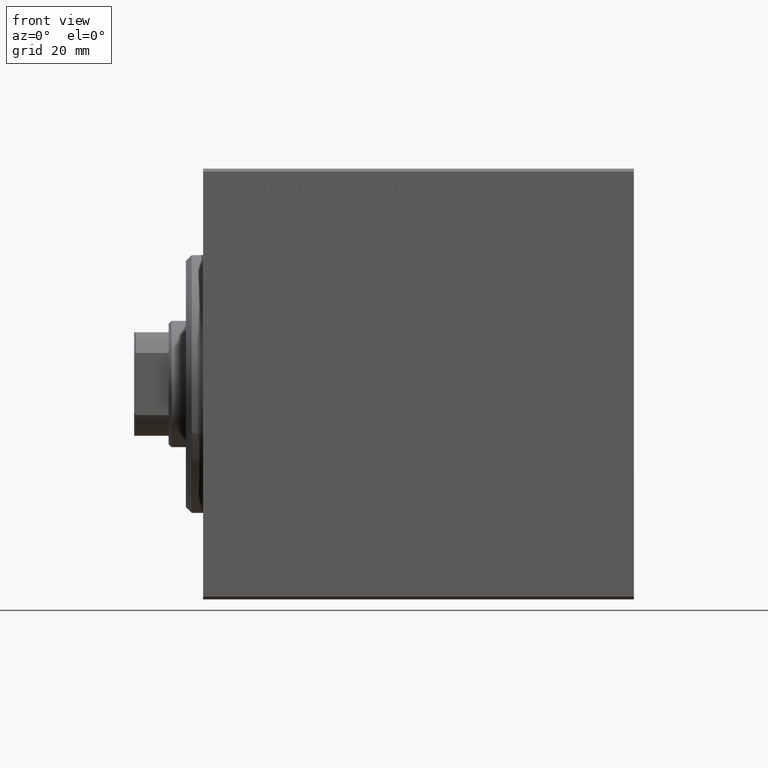
[diagram: clean part render]
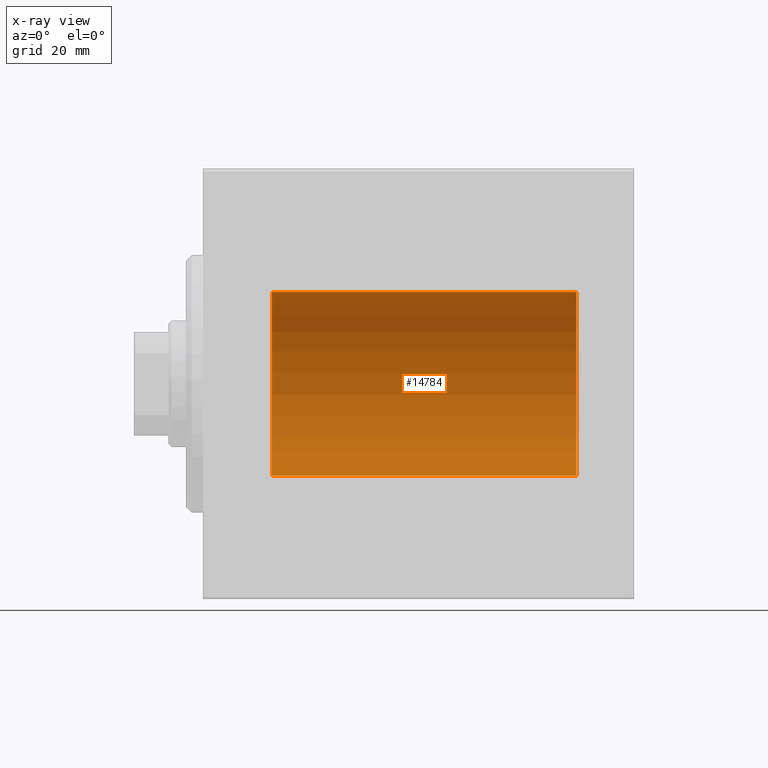
[diagram: x-ray — body ghosted, one internal face saturated and labeled with its STEP entity id]
A machine part, front view, then the same camera in x-ray: the body is ghosted and one INTERNAL B-rep face — a face not visible from any outside direction — is saturated and labeled: STEP entity #14784.
In plain terms, the highlighted cylindrical surface (partial cylindrical patch) has radius 16 mm, axis along (-1, -0, -0).
Its self-contained STEP definition (entity closure, byte-faithful):
#423 = DIRECTION ( 'NONE',  ( 0.000000000000000000, 0.000000000000000000, 1.000000000000000000 ) ) ;
#1072 = CARTESIAN_POINT ( 'NONE',  ( 11.99999999999999645, 0.000000000000000000, 0.000000000000000000 ) ) ;
#2239 = ORIENTED_EDGE ( 'NONE', *, *, #11888, .T. ) ;
#2760 = CARTESIAN_POINT ( 'NONE',  ( 65.00000000000000000, 0.000000000000000000, 16.00000000000000000 ) ) ;
#3954 = CARTESIAN_POINT ( 'NONE',  ( 65.00000000000000000, 0.000000000000000000, 16.00000000000000000 ) ) ;
#7138 = VERTEX_POINT ( 'NONE', #27258 ) ;
#7772 = VECTOR ( 'NONE', #43175, 1000.000000000000000 ) ;
#7906 = EDGE_CURVE ( 'NONE', #11534, #7138, #33009, .T. ) ;
#11534 = VERTEX_POINT ( 'NONE', #2760 ) ;
#11888 = EDGE_CURVE ( 'NONE', #42445, #22037, #20406, .T. ) ;
#13777 = ORIENTED_EDGE ( 'NONE', *, *, #25753, .T. ) ;
#13822 = DIRECTION ( 'NONE',  ( -1.000000000000000000, 0.000000000000000000, 0.000000000000000000 ) ) ;
#14000 = AXIS2_PLACEMENT_3D ( 'NONE', #30571, #13822, #36749 ) ;
#14097 = LINE ( 'NONE', #3954, #22017 ) ;
#14784 = ADVANCED_FACE ( 'NONE', ( #15445 ), #25140, .F. ) ;
#15445 = FACE_OUTER_BOUND ( 'NONE', #23964, .T. ) ;
#16109 = CARTESIAN_POINT ( 'NONE',  ( 11.99999999999999645, 0.000000000000000000, 16.00000000000000000 ) ) ;
#18645 = EDGE_CURVE ( 'NONE', #7138, #22037, #29748, .T. ) ;
#19405 = DIRECTION ( 'NONE',  ( -1.000000000000000000, -0.000000000000000000, -0.000000000000000000 ) ) ;
#20406 = CIRCLE ( 'NONE', #35203, 16.00000000000000000 ) ;
#21668 = ORIENTED_EDGE ( 'NONE', *, *, #7906, .F. ) ;
#22017 = VECTOR ( 'NONE', #24016, 1000.000000000000000 ) ;
#22037 = VERTEX_POINT ( 'NONE', #23701 ) ;
#23701 = CARTESIAN_POINT ( 'NONE',  ( 11.99999999999999645, 1.959434878635765131E-15, -16.00000000000000000 ) ) ;
#23964 = EDGE_LOOP ( 'NONE', ( #32190, #21668, #13777, #2239 ) ) ;
#24016 = DIRECTION ( 'NONE',  ( -1.000000000000000000, -0.000000000000000000, -0.000000000000000000 ) ) ;
#25140 = CYLINDRICAL_SURFACE ( 'NONE', #28329, 16.00000000000000000 ) ;
#25753 = EDGE_CURVE ( 'NONE', #11534, #42445, #14097, .T. ) ;
#25780 = CARTESIAN_POINT ( 'NONE',  ( 65.00000000000000000, 1.959434878635765131E-15, -16.00000000000000000 ) ) ;
#27258 = CARTESIAN_POINT ( 'NONE',  ( 65.00000000000000000, 1.959434878635765131E-15, -16.00000000000000000 ) ) ;
#27323 = DIRECTION ( 'NONE',  ( -1.000000000000000000, 0.000000000000000000, 0.000000000000000000 ) ) ;
#28329 = AXIS2_PLACEMENT_3D ( 'NONE', #42099, #19405, #42529 ) ;
#29748 = LINE ( 'NONE', #25780, #7772 ) ;
#30571 = CARTESIAN_POINT ( 'NONE',  ( 65.00000000000000000, 0.000000000000000000, 0.000000000000000000 ) ) ;
#32190 = ORIENTED_EDGE ( 'NONE', *, *, #18645, .F. ) ;
#33009 = CIRCLE ( 'NONE', #14000, 16.00000000000000000 ) ;
#35203 = AXIS2_PLACEMENT_3D ( 'NONE', #1072, #27323, #423 ) ;
#36749 = DIRECTION ( 'NONE',  ( 0.000000000000000000, 0.000000000000000000, 1.000000000000000000 ) ) ;
#42099 = CARTESIAN_POINT ( 'NONE',  ( 65.00000000000000000, 0.000000000000000000, 0.000000000000000000 ) ) ;
#42445 = VERTEX_POINT ( 'NONE', #16109 ) ;
#42529 = DIRECTION ( 'NONE',  ( 0.000000000000000000, 0.000000000000000000, 1.000000000000000000 ) ) ;
#43175 = DIRECTION ( 'NONE',  ( -1.000000000000000000, -0.000000000000000000, -0.000000000000000000 ) ) ;